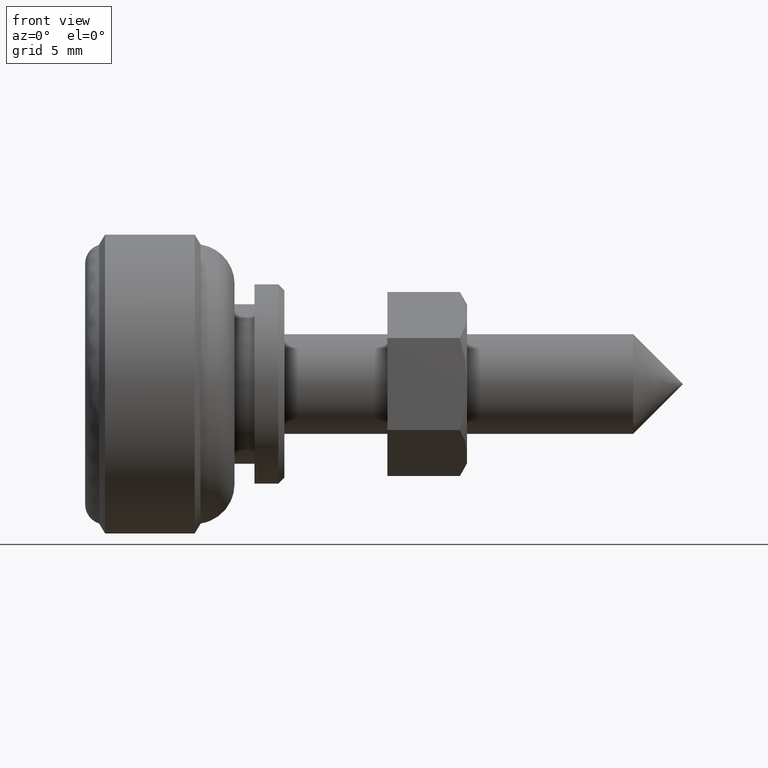
[diagram: clean part render]
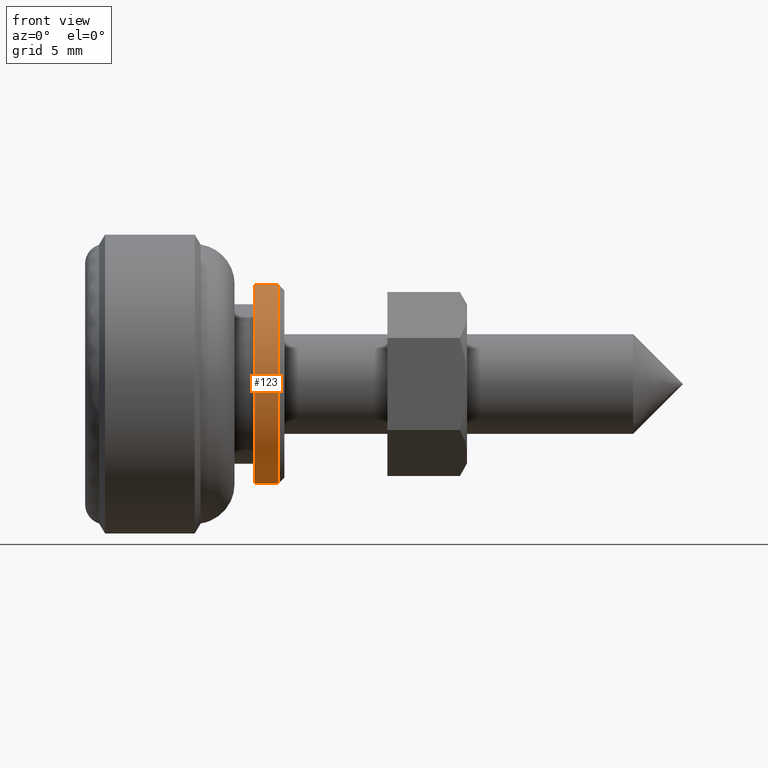
[diagram: same view with one face highlighted and labeled with its STEP entity id]
A machine part, front view. The second image highlights one B-rep face of the part: STEP entity #123.
In plain terms, the highlighted cylindrical surface (partial cylindrical patch) has radius 5 mm, axis along (1, 0, 0).
Its self-contained STEP definition (entity closure, byte-faithful):
#123=ADVANCED_FACE('',(#266),#265,.T.);
#265=CYLINDRICAL_SURFACE('',#642,5.00000000000E+00);
#266=FACE_OUTER_BOUND('',#643,.T.);
#639=CARTESIAN_POINT('',(0.00000000000E+00,0.00000000000E+00,1.79625203600E-11));
#640=DIRECTION('',(1.00000000000E+00,-0.00000000000E+00,-0.00000000000E+00));
#641=DIRECTION('',(0.00000000000E+00,0.00000000000E+00,-1.00000000000E+00));
#642=AXIS2_PLACEMENT_3D('',#639,#640,#641);
#643=EDGE_LOOP('',(#946,#947,#948,#949));
#946=ORIENTED_EDGE('',*,*,#1081,.F.);
#947=ORIENTED_EDGE('',*,*,#1098,.T.);
#948=ORIENTED_EDGE('',*,*,#1094,.T.);
#949=ORIENTED_EDGE('',*,*,#1099,.F.);
#1081=EDGE_CURVE('',#1201,#1200,#1208,.T.);
#1094=EDGE_CURVE('',#1295,#1296,#1297,.T.);
#1098=EDGE_CURVE('',#1201,#1295,#1321,.T.);
#1099=EDGE_CURVE('',#1200,#1296,#1327,.T.);
#1200=VERTEX_POINT('',#1743);
#1201=VERTEX_POINT('',#1744);
#1208=CIRCLE('',#1752,5.00000000000E+00);
#1295=VERTEX_POINT('',#1802);
#1296=VERTEX_POINT('',#1803);
#1297=CIRCLE('',#1807,5.00000000000E+00);
#1321=(BOUNDED_CURVE() B_SPLINE_CURVE(1,(#1816,#1817),.UNSPECIFIED.,.F.,.F.) B_SPLINE_CURVE_WITH_KNOTS((2,2),(8.33333134656E-02,9.16666653270E-01),.UNSPECIFIED.) CURVE() GEOMETRIC_REPRESENTATION_ITEM() RATIONAL_B_SPLINE_CURVE((1.00000000000E+00,1.00000000000E+00)) REPRESENTATION_ITEM('') );
#1327=(BOUNDED_CURVE() B_SPLINE_CURVE(1,(#1818,#1819),.UNSPECIFIED.,.F.,.F.) B_SPLINE_CURVE_WITH_KNOTS((2,2),(8.33333333333E-02,9.16666666667E-01),.UNSPECIFIED.) CURVE() GEOMETRIC_REPRESENTATION_ITEM() RATIONAL_B_SPLINE_CURVE((7.50000000000E-01,7.50000000000E-01)) REPRESENTATION_ITEM('') );
#1743=CARTESIAN_POINT('',(-2.15000000000E+01,0.00000000000E+00,5.00000000002E+00));
#1744=CARTESIAN_POINT('',(-2.15000000000E+01,2.96059473233E-16,-4.99999999998E+00));
#1749=CARTESIAN_POINT('',(-2.15000000000E+01,0.00000000000E+00,1.79625203600E-11));
#1750=DIRECTION('',(-1.00000000000E+00,0.00000000000E+00,0.00000000000E+00));
#1751=DIRECTION('',(0.00000000000E+00,-1.22460635382E-16,1.00000000000E+00));
#1752=AXIS2_PLACEMENT_3D('',#1749,#1750,#1751);
#1802=CARTESIAN_POINT('',(-2.03000000000E+01,2.96059473233E-16,-4.99999999998E+00));
#1803=CARTESIAN_POINT('',(-2.03000000000E+01,0.00000000000E+00,5.00000000002E+00));
#1804=CARTESIAN_POINT('',(-2.03000000000E+01,0.00000000000E+00,1.79625203600E-11));
#1805=DIRECTION('',(-1.00000000000E+00,0.00000000000E+00,0.00000000000E+00));
#1806=DIRECTION('',(0.00000000000E+00,-1.22460635382E-16,1.00000000000E+00));
#1807=AXIS2_PLACEMENT_3D('',#1804,#1805,#1806);
#1816=CARTESIAN_POINT('',(-2.15000000286E+01,0.00000000000E+00,-4.99999999998E+00));
#1817=CARTESIAN_POINT('',(-2.03000000193E+01,0.00000000000E+00,-4.99999999998E+00));
#1818=CARTESIAN_POINT('',(-2.15000000000E+01,-2.96059473233E-16,5.00000000002E+00));
#1819=CARTESIAN_POINT('',(-2.03000000000E+01,-2.96059473233E-16,5.00000000002E+00));